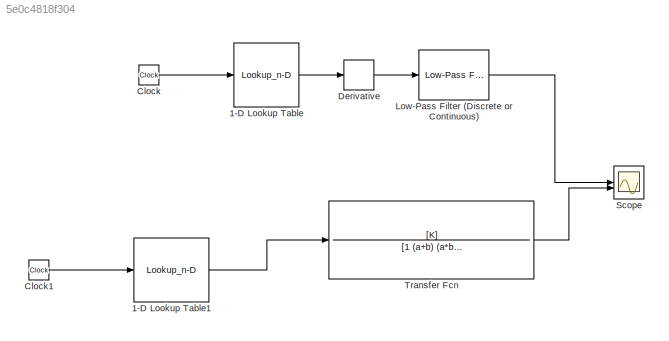
MODEL slx_5e0c4818f304
KIND model
CONFIG AbsTol = auto
CONFIG EnableMultiTasking = off
CONFIG FixedStep = 0.01
CONFIG MaxStep = auto
CONFIG MinStep = auto
CONFIG RelTol = 1e-3
CONFIG SampleTimeConstraint = Unconstrained
CONFIG SolverName = ode14x
CONFIG StartTime = 0.0
CONFIG StopTime = 4.5
BLOCK [Lookup_n-D] 1-D Lookup Table
  BreakpointsForDimension1 = T
  InputPortMap = u0
  InternalRulePriority = Speed
  NumberOfTableDimensions = 1
  RndMeth = Simplest
  Table = PosReal
BLOCK [Lookup_n-D] 1-D Lookup Table1
  BreakpointsForDimension1 = T
  InputPortMap = u0
  InternalRulePriority = Speed
  NumberOfTableDimensions = 1
  RndMeth = Simplest
  Table = VDes
BLOCK [Clock] Clock
BLOCK [Clock] Clock1
BLOCK [Derivative] Derivative
BLOCK [Reference] Low-Pass Filter (Discrete or Continuous)  REF=eeGeneralControl/Low-Pass Filter
(Discrete or Continuous)
  LibrarySourceBlock = ee_sl_lib/General Control/Low-Pass Filter\n(Discrete or Continuous)
  SourceBlock = eeGeneralControl/Low-Pass Filter\n(Discrete or Continuous)
  SourceType = Low-Pass Filter (Discrete or Continuous)
BLOCK [Scope] Scope
  Floating = off
  NumInputPorts = 2
  ScopeSpecificationString = Simulink.scopes.TimeScopeBlockCfg('CurrentConfiguration', extmgr.ConfigurationSet(extmgr.Configuration('Core','General UI',true),extmgr.Configuration('Core','Source UI',true),extmgr.Configuration('Sources','WiredSimulink',true,'DataLogging',true,'DataLoggingVariableName','Data','DataLoggingSaveFormat','StructureWithTime'),extmgr.Configuration('Visuals','Time Domain',true,'SerializedDisplays',{stru...<+1515ch>
BLOCK [TransferFcn] Transfer Fcn
  Denominator = [1 (a+b) (a*b)]
  Numerator = [K]
LINE 1-D Lookup Table1:1 -> Transfer Fcn:1
LINE 1-D Lookup Table:1 -> Derivative:1
LINE Clock1:1 -> 1-D Lookup Table1:1
LINE Clock:1 -> 1-D Lookup Table:1
LINE Derivative:1 -> Low-Pass Filter (Discrete or Continuous):1
LINE Low-Pass Filter (Discrete or Continuous):1 -> Scope:1
LINE Transfer Fcn:1 -> Scope:2
